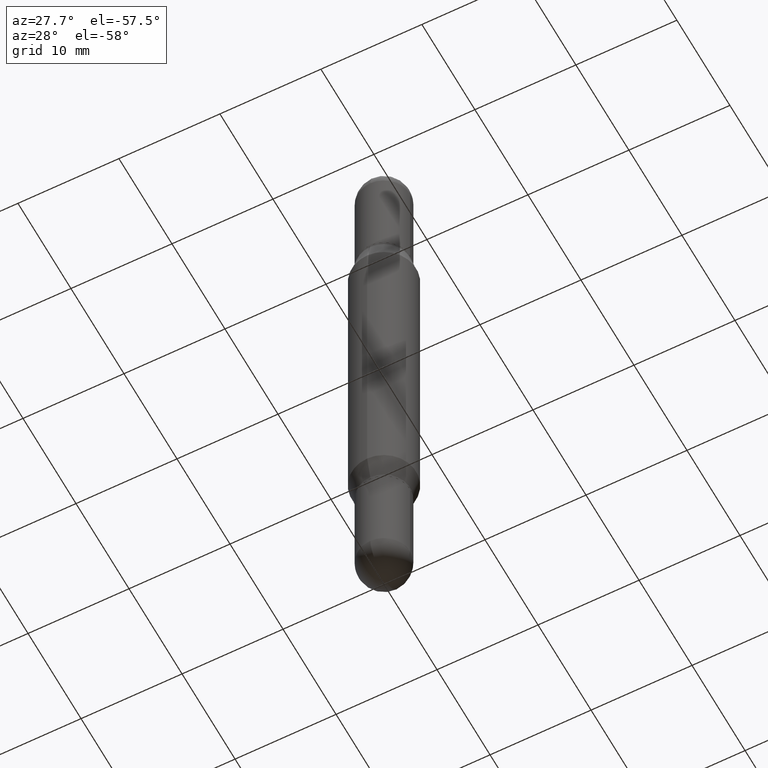
[diagram: clean part render]
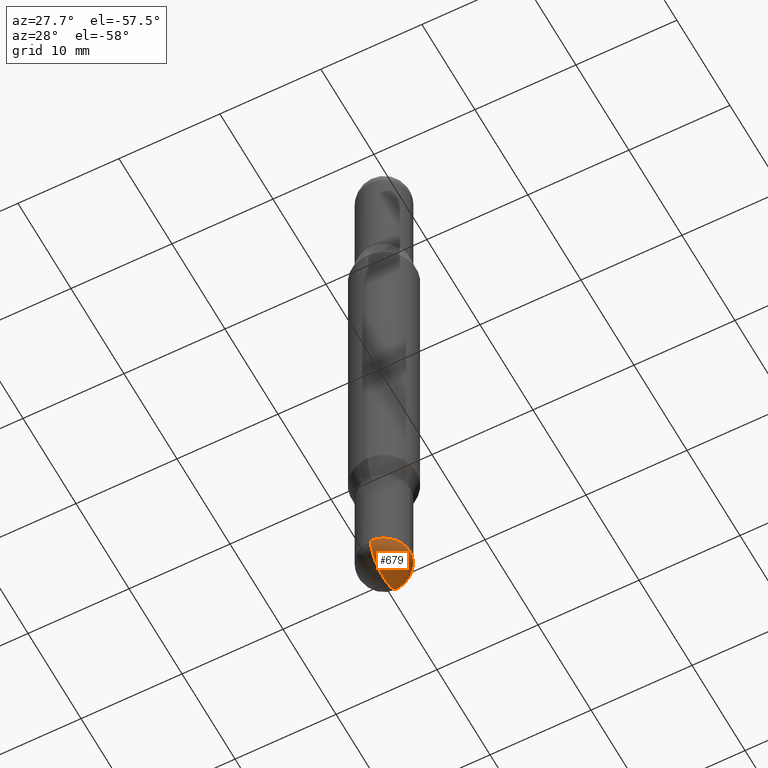
[diagram: same view with one face highlighted and labeled with its STEP entity id]
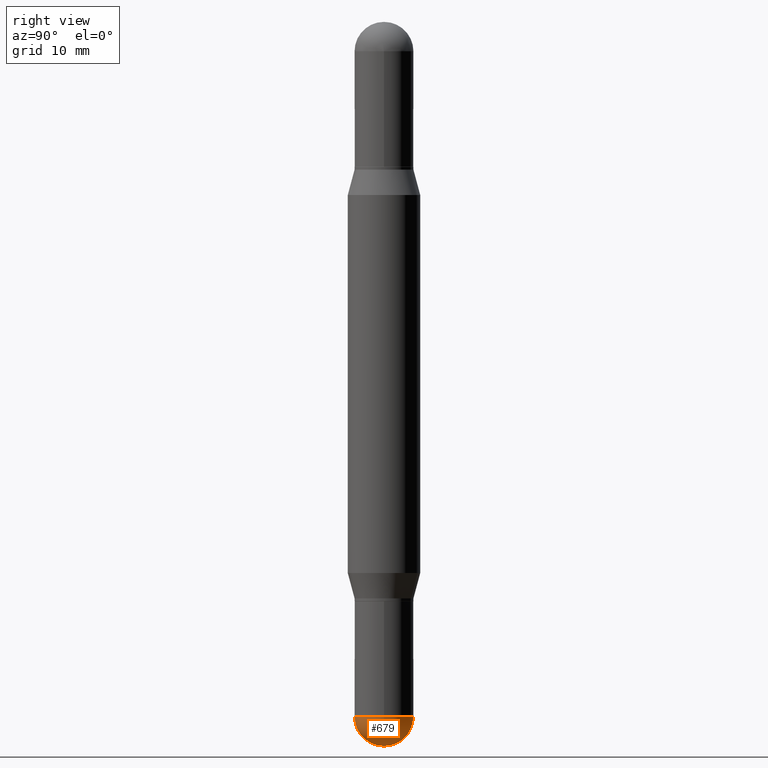
[diagram: same view with one face highlighted and labeled with its STEP entity id]
A machine part, auxiliary view. The second image highlights one B-rep face of the part: STEP entity #679.
A second angle (right view) of the same face is appended — the face is thin or edge-on in the first view.
In plain terms, the highlighted spherical surface has radius 2.5794 mm.
Its self-contained STEP definition (entity closure, byte-faithful):
#7 = AXIS2_PLACEMENT_3D ( 'NONE', #373, #813, #728 ) ;
#24 = FACE_OUTER_BOUND ( 'NONE', #37, .T. ) ;
#29 = ORIENTED_EDGE ( 'NONE', *, *, #445, .F. ) ;
#37 = EDGE_LOOP ( 'NONE', ( #824, #121, #29, #471 ) ) ;
#57 = CARTESIAN_POINT ( 'NONE',  ( 5.865334658194741045E-29, -8.374143417148343763E-15, -2.398450000000000415 ) ) ;
#74 = DIRECTION ( 'NONE',  ( -1.000000000000000000, 7.105427357601001070E-15, -4.926315508542082329E-29 ) ) ;
#121 = ORIENTED_EDGE ( 'NONE', *, *, #705, .T. ) ;
#146 = AXIS2_PLACEMENT_3D ( 'NONE', #343, #74, #598 ) ;
#174 = CARTESIAN_POINT ( 'NONE',  ( 0.1015500000000000985, -8.387672907336357852E-15, -2.398450000000000415 ) ) ;
#198 = DIRECTION ( 'NONE',  ( 6.982962677686266711E-15, 1.000000000000000000, -2.690150658458162309E-15 ) ) ;
#251 = AXIS2_PLACEMENT_3D ( 'NONE', #1072, #275, #459 ) ;
#275 = DIRECTION ( 'NONE',  ( -2.445468806185136597E-29, 3.491481338843145583E-15, 1.000000000000000000 ) ) ;
#285 = CARTESIAN_POINT ( 'NONE',  ( 5.899408758987094508E-29, -8.325347365436315775E-15, -2.398450000000000415 ) ) ;
#326 = AXIS2_PLACEMENT_3D ( 'NONE', #285, #536, #198 ) ;
#343 = CARTESIAN_POINT ( 'NONE',  ( 5.899408758987094508E-29, -8.325347365436315775E-15, -2.398450000000000415 ) ) ;
#373 = CARTESIAN_POINT ( 'NONE',  ( 5.899408758987094508E-29, -8.325347365436315775E-15, -2.398450000000000415 ) ) ;
#382 = CIRCLE ( 'NONE', #146, 0.1015499999999999736 ) ;
#400 = CIRCLE ( 'NONE', #875, 0.1015500000000000985 ) ;
#413 = DIRECTION ( 'NONE',  ( -2.445468806185136597E-29, 3.491481338843145583E-15, 1.000000000000000000 ) ) ;
#445 = EDGE_CURVE ( 'NONE', #572, #666, #400, .T. ) ;
#459 = DIRECTION ( 'NONE',  ( 1.000000000000000000, -6.982962677686258033E-15, 0.000000000000000000 ) ) ;
#471 = ORIENTED_EDGE ( 'NONE', *, *, #662, .F. ) ;
#536 = DIRECTION ( 'NONE',  ( -1.000000000000000000, 6.982962677686266711E-15, -4.883557194083112901E-29 ) ) ;
#540 = CIRCLE ( 'NONE', #7, 0.1015499999999999736 ) ;
#572 = VERTEX_POINT ( 'NONE', #174 ) ;
#598 = DIRECTION ( 'NONE',  ( -7.105427357601001070E-15, -1.000000000000000000, 0.000000000000000000 ) ) ;
#617 = CARTESIAN_POINT ( 'NONE',  ( -7.215561481643230770E-16, -0.1015500000000083697, -2.398449999999999971 ) ) ;
#622 = CARTESIAN_POINT ( 'NONE',  ( 7.091198599190993550E-16, 0.1015499999999916747, -2.398450000000000415 ) ) ;
#662 = EDGE_CURVE ( 'NONE', #700, #572, #946, .T. ) ;
#666 = VERTEX_POINT ( 'NONE', #622 ) ;
#679 = ADVANCED_FACE ( 'NONE', ( #24 ), #1060, .T. ) ;
#700 = VERTEX_POINT ( 'NONE', #617 ) ;
#705 = EDGE_CURVE ( 'NONE', #993, #666, #540, .T. ) ;
#728 = DIRECTION ( 'NONE',  ( 6.982962677686266711E-15, 1.000000000000000000, 0.000000000000000000 ) ) ;
#813 = DIRECTION ( 'NONE',  ( 1.000000000000000000, -6.982962677686265922E-15, 4.883557194083112340E-29 ) ) ;
#824 = ORIENTED_EDGE ( 'NONE', *, *, #920, .F. ) ;
#875 = AXIS2_PLACEMENT_3D ( 'NONE', #57, #413, #1008 ) ;
#920 = EDGE_CURVE ( 'NONE', #993, #700, #382, .T. ) ;
#946 = CIRCLE ( 'NONE', #251, 0.1015500000000000985 ) ;
#993 = VERTEX_POINT ( 'NONE', #1042 ) ;
#1008 = DIRECTION ( 'NONE',  ( 1.000000000000000000, -6.982962677686258033E-15, 0.000000000000000000 ) ) ;
#1042 = CARTESIAN_POINT ( 'NONE',  ( 6.152088223088502938E-29, -8.673689151273167162E-15, -2.500000000000000000 ) ) ;
#1060 = SPHERICAL_SURFACE ( 'NONE', #326, 0.1015499999999999736 ) ;
#1072 = CARTESIAN_POINT ( 'NONE',  ( 5.865334658194741045E-29, -8.374143417148343763E-15, -2.398450000000000415 ) ) ;